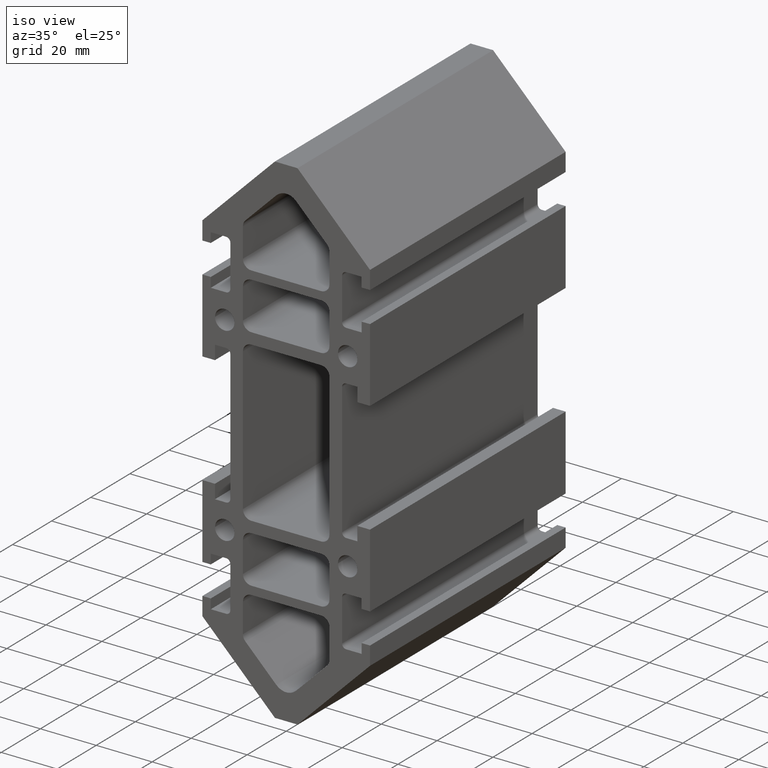
[diagram: clean part render]
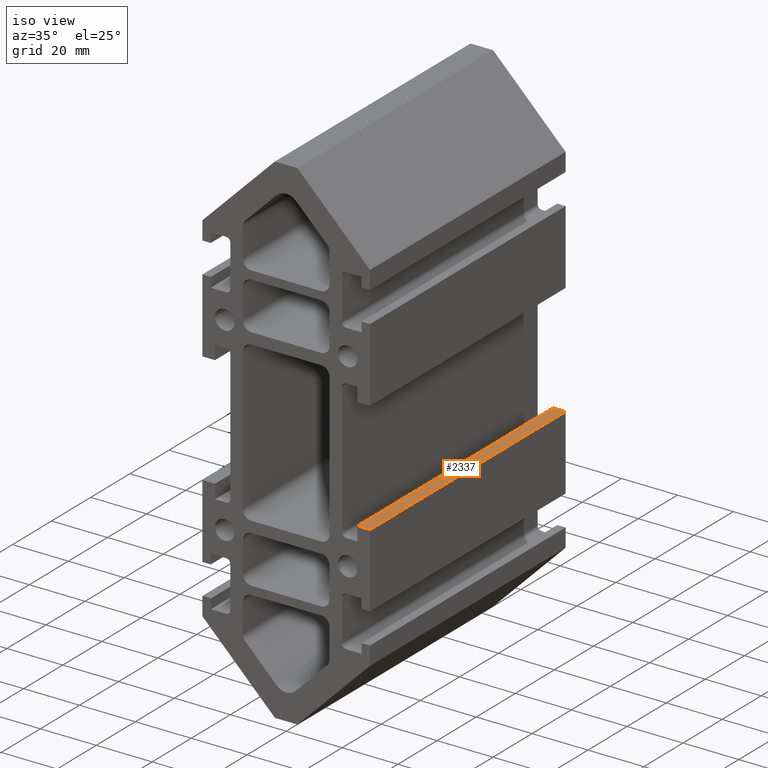
[diagram: same view with one face highlighted and labeled with its STEP entity id]
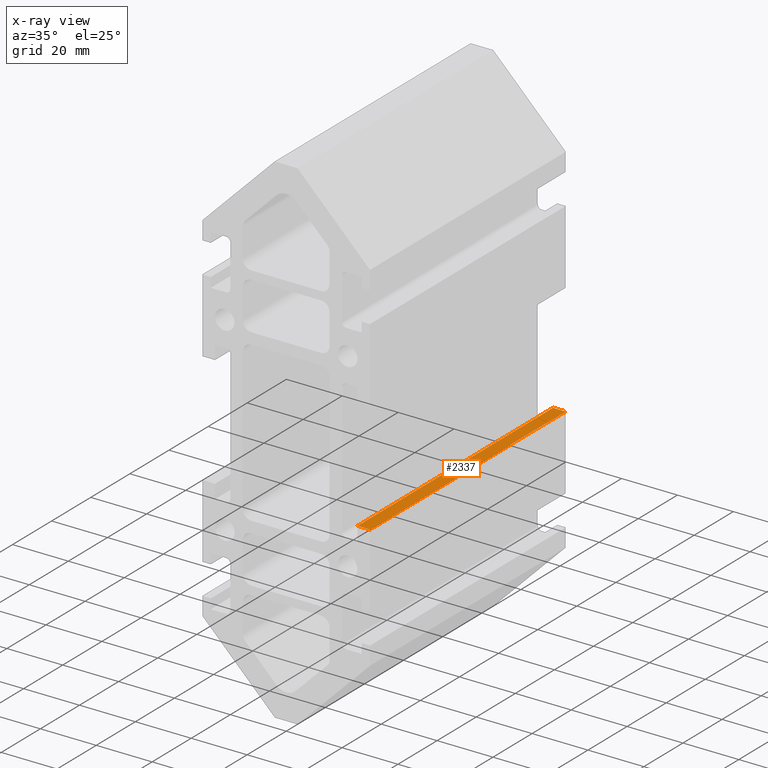
[diagram: x-ray of the same camera — body ghosted, the highlighted face saturated]
A machine part, iso view. The second image highlights one B-rep face of the part: STEP entity #2337.
The next image is the same camera in x-ray: the body ghosted, the highlighted face saturated — about 0% of this face is hidden behind the body in this view.
In plain terms, the highlighted planar face has unit normal (-0, 0, -1).
Its self-contained STEP definition (entity closure, byte-faithful):
#50=PLANE('',#2516);
#149=FACE_OUTER_BOUND('',#267,.T.);
#267=EDGE_LOOP('',(#1711,#1712,#1713,#1714));
#440=LINE('',#3528,#712);
#442=LINE('',#3532,#714);
#443=LINE('',#3534,#715);
#444=LINE('',#3535,#716);
#712=VECTOR('',#2859,10.);
#714=VECTOR('',#2863,10.);
#715=VECTOR('',#2864,10.);
#716=VECTOR('',#2865,10.);
#1067=VERTEX_POINT('',#3525);
#1068=VERTEX_POINT('',#3527);
#1069=VERTEX_POINT('',#3531);
#1070=VERTEX_POINT('',#3533);
#1330=EDGE_CURVE('',#1067,#1068,#440,.T.);
#1332=EDGE_CURVE('',#1067,#1069,#442,.T.);
#1333=EDGE_CURVE('',#1069,#1070,#443,.T.);
#1334=EDGE_CURVE('',#1070,#1068,#444,.T.);
#1711=ORIENTED_EDGE('',*,*,#1332,.T.);
#1712=ORIENTED_EDGE('',*,*,#1333,.T.);
#1713=ORIENTED_EDGE('',*,*,#1334,.T.);
#1714=ORIENTED_EDGE('',*,*,#1330,.F.);
#2337=ADVANCED_FACE('',(#149),#50,.F.);
#2516=AXIS2_PLACEMENT_3D('',#3530,#2861,#2862);
#2859=DIRECTION('',(0.,1.,0.));
#2861=DIRECTION('center_axis',(-6.97159890834733E-15,0.,-1.));
#2862=DIRECTION('ref_axis',(-1.,0.,6.97159890834733E-15));
#2863=DIRECTION('',(1.,0.,-6.97159890834733E-15));
#2864=DIRECTION('',(0.,1.,0.));
#2865=DIRECTION('',(-1.,0.,6.97159890834733E-15));
#3525=CARTESIAN_POINT('',(25.4999999999999,0.,-20.0000000000003));
#3527=CARTESIAN_POINT('',(25.4999999999999,100.,-20.0000000000003));
#3528=CARTESIAN_POINT('',(25.4999999999999,0.,-20.0000000000003));
#3530=CARTESIAN_POINT('Origin',(29.9999999999999,0.,-20.0000000000003));
#3531=CARTESIAN_POINT('',(29.9999999999999,0.,-20.0000000000003));
#3532=CARTESIAN_POINT('',(25.4999999999999,0.,-20.0000000000003));
#3533=CARTESIAN_POINT('',(29.9999999999999,100.,-20.0000000000003));
#3534=CARTESIAN_POINT('',(29.9999999999999,0.,-20.0000000000003));
#3535=CARTESIAN_POINT('',(25.4999999999999,100.,-20.0000000000003));